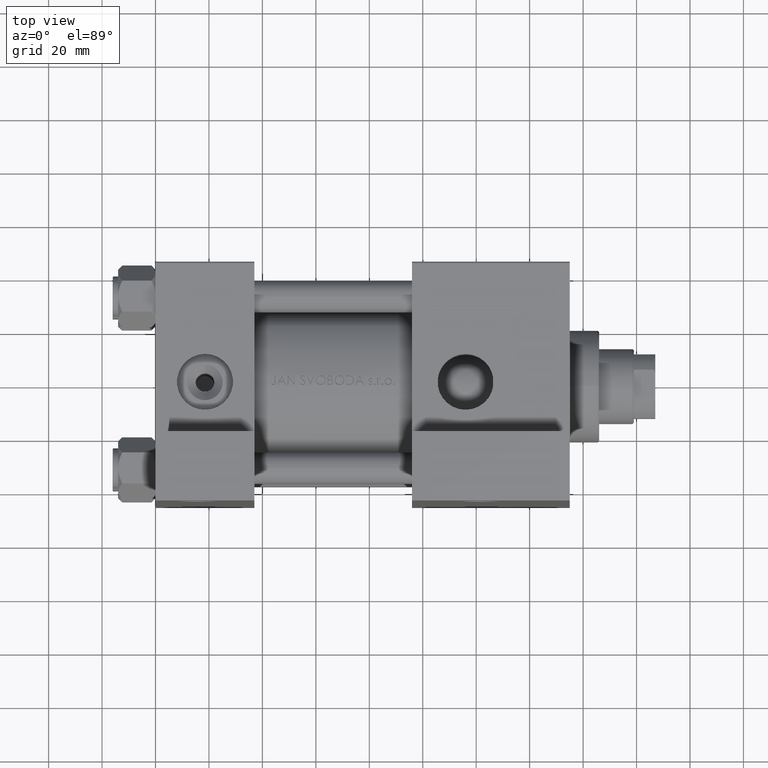
[diagram: clean part render]
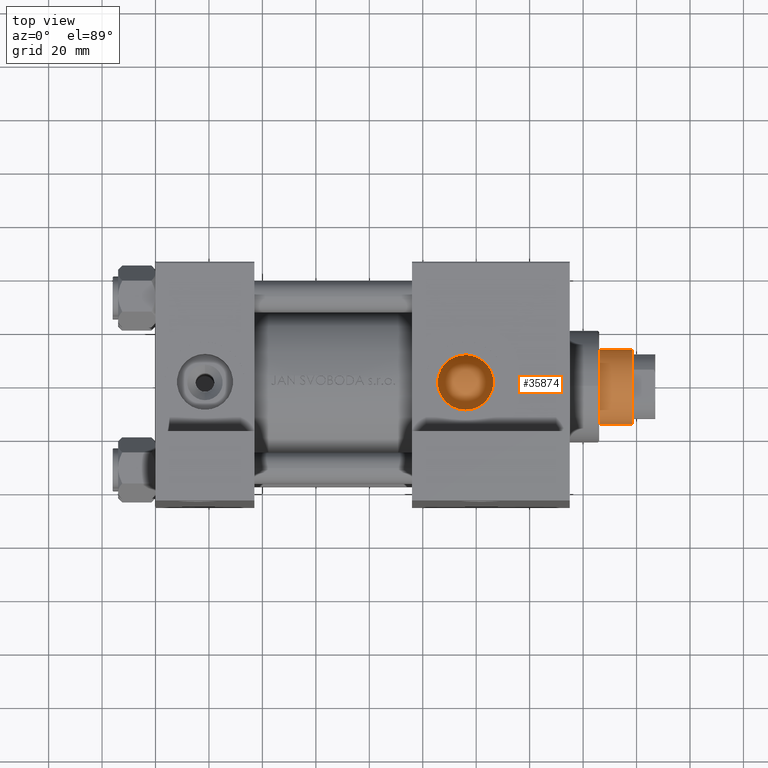
[diagram: same view with one face highlighted and labeled with its STEP entity id]
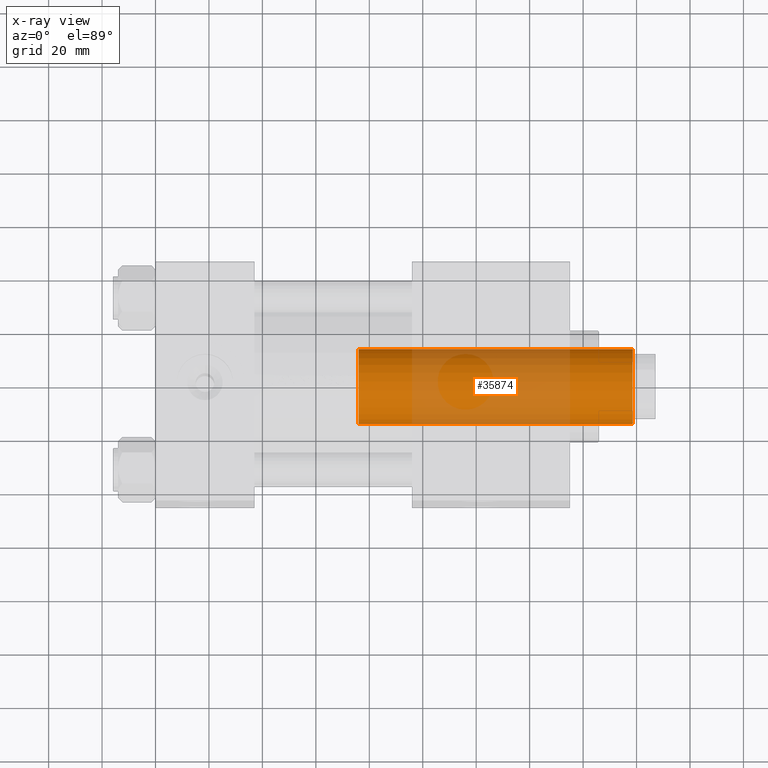
[diagram: x-ray of the same camera — body ghosted, the highlighted face saturated]
A machine part, top view. The second image highlights one B-rep face of the part: STEP entity #35874.
The next image is the same camera in x-ray: the body ghosted, the highlighted face saturated — about 46% of this face is hidden behind the body in this view.
In plain terms, the highlighted cylindrical surface (partial cylindrical patch) has radius 14 mm, axis along (-1, 0, 0).
Its self-contained STEP definition (entity closure, byte-faithful):
#1669 = VERTEX_POINT ( 'NONE', #17710 ) ;
#2631 = DIRECTION ( 'NONE',  ( 0.000000000000000000, 0.000000000000000000, 1.000000000000000000 ) ) ;
#2649 = CYLINDRICAL_SURFACE ( 'NONE', #27096, 14.00000000000000178 ) ;
#3279 = CARTESIAN_POINT ( 'NONE',  ( 14.00000000000000178, 1.714505518806294835E-15, 39.00000000000000000 ) ) ;
#4214 = ORIENTED_EDGE ( 'NONE', *, *, #36906, .T. ) ;
#4662 = CIRCLE ( 'NONE', #48865, 14.00000000000000178 ) ;
#5555 = VECTOR ( 'NONE', #37193, 1000.000000000000000 ) ;
#8582 = EDGE_CURVE ( 'NONE', #46466, #17304, #47607, .T. ) ;
#9553 = DIRECTION ( 'NONE',  ( 0.000000000000000000, 0.000000000000000000, -1.000000000000000000 ) ) ;
#10419 = DIRECTION ( 'NONE',  ( -1.000000000000000000, 0.000000000000000000, 0.000000000000000000 ) ) ;
#11859 = AXIS2_PLACEMENT_3D ( 'NONE', #18192, #2631, #40782 ) ;
#17304 = VERTEX_POINT ( 'NONE', #3279 ) ;
#17710 = CARTESIAN_POINT ( 'NONE',  ( -14.00000000000000178, 0.000000000000000000, 141.5000000000000000 ) ) ;
#18192 = CARTESIAN_POINT ( 'NONE',  ( 0.000000000000000000, 0.000000000000000000, 39.00000000000000000 ) ) ;
#20015 = CARTESIAN_POINT ( 'NONE',  ( 14.00000000000000178, 1.714505518806294835E-15, 142.0000000000000000 ) ) ;
#20153 = VECTOR ( 'NONE', #43347, 1000.000000000000000 ) ;
#27096 = AXIS2_PLACEMENT_3D ( 'NONE', #41309, #32770, #10419 ) ;
#27651 = VERTEX_POINT ( 'NONE', #33134 ) ;
#28902 = CARTESIAN_POINT ( 'NONE',  ( 0.000000000000000000, 0.000000000000000000, 141.5000000000000000 ) ) ;
#29518 = FACE_OUTER_BOUND ( 'NONE', #41413, .T. ) ;
#32740 = CIRCLE ( 'NONE', #11859, 14.00000000000000178 ) ;
#32770 = DIRECTION ( 'NONE',  ( -0.000000000000000000, -0.000000000000000000, -1.000000000000000000 ) ) ;
#33099 = ORIENTED_EDGE ( 'NONE', *, *, #8582, .F. ) ;
#33134 = CARTESIAN_POINT ( 'NONE',  ( -14.00000000000000178, 0.000000000000000000, 39.00000000000000000 ) ) ;
#35874 = ADVANCED_FACE ( 'NONE', ( #29518 ), #2649, .T. ) ;
#36546 = ORIENTED_EDGE ( 'NONE', *, *, #44260, .T. ) ;
#36906 = EDGE_CURVE ( 'NONE', #27651, #17304, #32740, .T. ) ;
#37193 = DIRECTION ( 'NONE',  ( -0.000000000000000000, -0.000000000000000000, -1.000000000000000000 ) ) ;
#38265 = ORIENTED_EDGE ( 'NONE', *, *, #44314, .T. ) ;
#40782 = DIRECTION ( 'NONE',  ( 1.000000000000000000, 0.000000000000000000, 0.000000000000000000 ) ) ;
#41205 = CARTESIAN_POINT ( 'NONE',  ( -14.00000000000000178, 0.000000000000000000, 142.0000000000000000 ) ) ;
#41309 = CARTESIAN_POINT ( 'NONE',  ( 0.000000000000000000, 0.000000000000000000, 142.0000000000000000 ) ) ;
#41413 = EDGE_LOOP ( 'NONE', ( #33099, #36546, #38265, #4214 ) ) ;
#43347 = DIRECTION ( 'NONE',  ( -0.000000000000000000, -0.000000000000000000, -1.000000000000000000 ) ) ;
#44204 = DIRECTION ( 'NONE',  ( 1.000000000000000000, 0.000000000000000000, 0.000000000000000000 ) ) ;
#44260 = EDGE_CURVE ( 'NONE', #46466, #1669, #4662, .T. ) ;
#44314 = EDGE_CURVE ( 'NONE', #1669, #27651, #48212, .T. ) ;
#46466 = VERTEX_POINT ( 'NONE', #49451 ) ;
#47607 = LINE ( 'NONE', #20015, #20153 ) ;
#48212 = LINE ( 'NONE', #41205, #5555 ) ;
#48865 = AXIS2_PLACEMENT_3D ( 'NONE', #28902, #9553, #44204 ) ;
#49451 = CARTESIAN_POINT ( 'NONE',  ( 14.00000000000000178, 1.714505518806294835E-15, 141.5000000000000000 ) ) ;